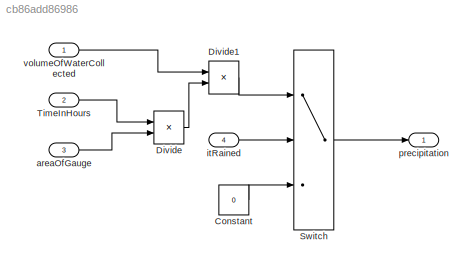
MODEL slx_cb86add86986
KIND model
CONFIG AbsTol = auto
CONFIG EnableMultiTasking = off
CONFIG FixedStep = auto
CONFIG MaxStep = auto
CONFIG MinStep = auto
CONFIG RelTol = 1e-3
CONFIG SampleTimeConstraint = Unconstrained
CONFIG Solver = FixedStepAuto
CONFIG SolverName = FixedStepAuto
CONFIG StartTime = 0.0
CONFIG StopTime = 100
BLOCK [Constant] Constant
  Value = 0
BLOCK [Product] Divide
  InputSameDT = off
  Inputs = **
  OutDataTypeStr = Inherit: Inherit via internal rule
  Ports = [2, 1]
  RndMeth = Floor
  SaturateOnIntegerOverflow = off
BLOCK [Product] Divide1
  InputSameDT = off
  Inputs = */
  OutDataTypeStr = Inherit: Inherit via internal rule
  Ports = [2, 1]
  RndMeth = Floor
  SaturateOnIntegerOverflow = off
BLOCK [Switch] Switch
  Criteria = u2 ~= 0
  InputSameDT = off
  SaturateOnIntegerOverflow = off
  Threshold = ~0
BLOCK [Inport] TimeInHours
  IconDisplay = Port number
  Port = 2
BLOCK [Inport] areaOfGauge
  IconDisplay = Port number
  Port = 3
BLOCK [Inport] itRained
  IconDisplay = Port number
  Port = 4
BLOCK [Outport] precipitation
  IconDisplay = Port number
BLOCK [Inport] volumeOfWaterCollected
  IconDisplay = Port number
LINE Constant:1 -> Switch:3
LINE Divide1:1 -> Switch:1
LINE Divide:1 -> Divide1:2
LINE Switch:1 -> precipitation:1
LINE TimeInHours:1 -> Divide:1
LINE areaOfGauge:1 -> Divide:2
LINE itRained:1 -> Switch:2
LINE volumeOfWaterCollected:1 -> Divide1:1
